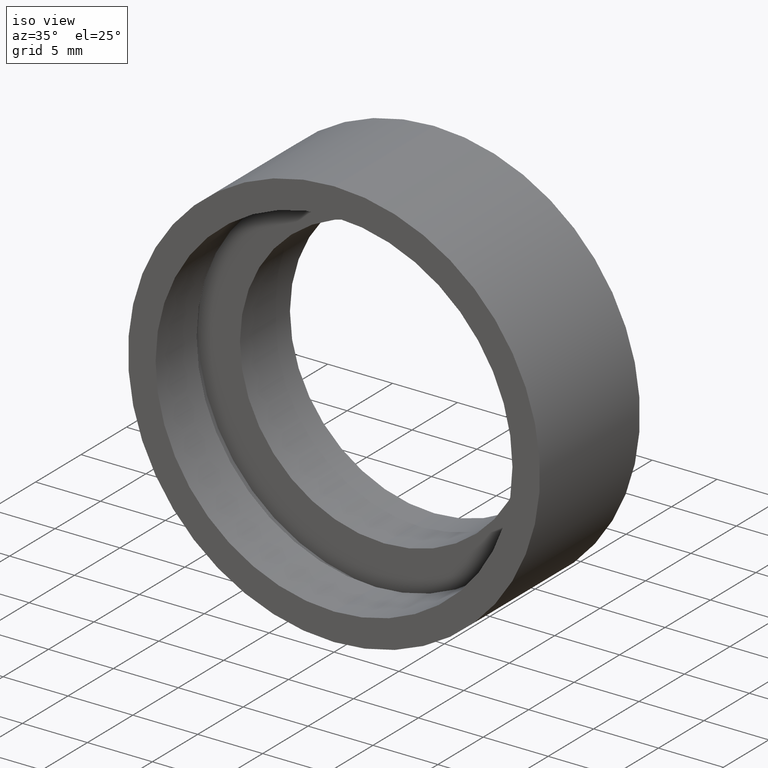
[diagram: clean part render]
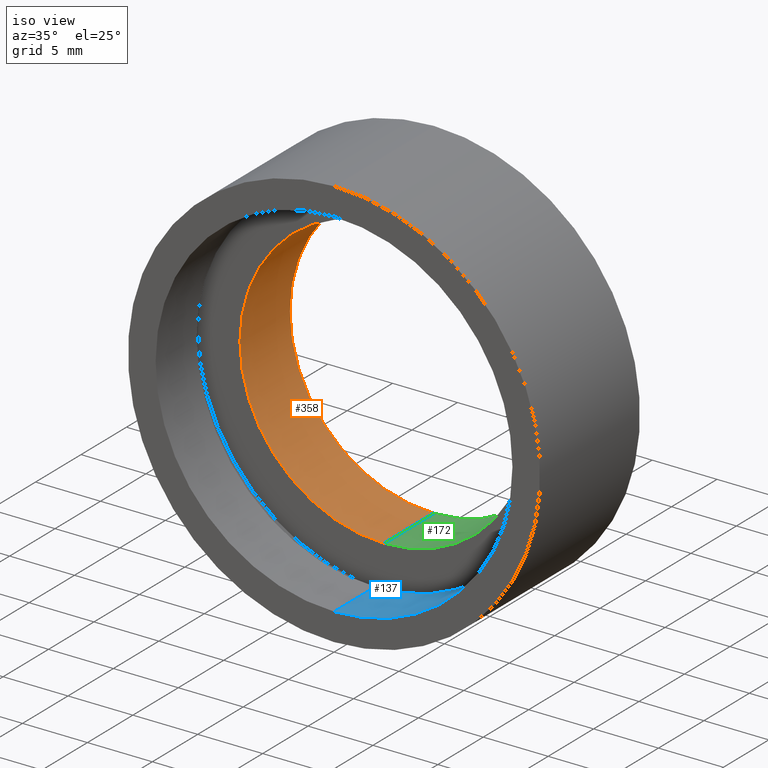
[diagram: same view with three faces highlighted in distinct colors, each labeled with its STEP entity id]
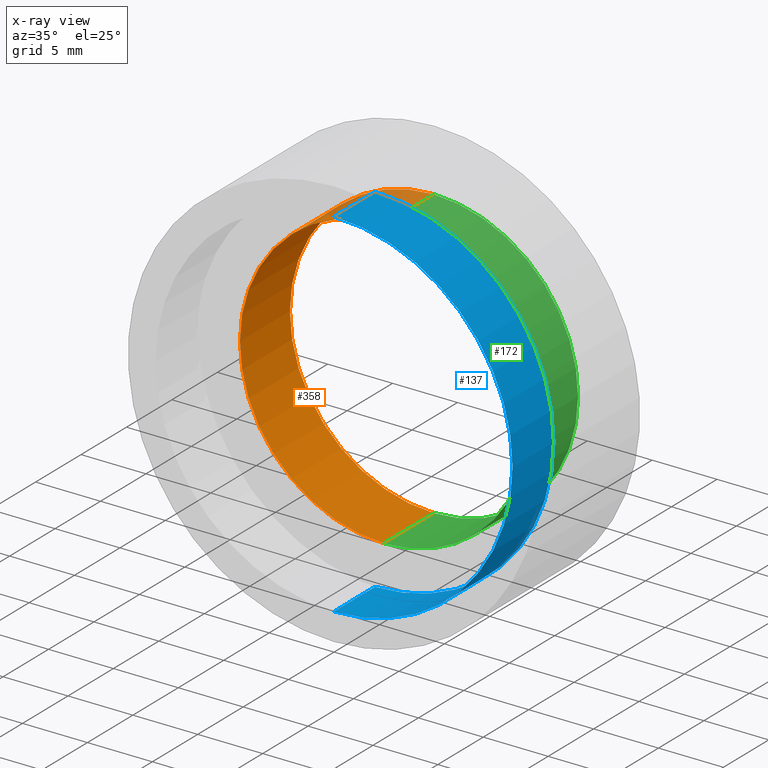
[diagram: x-ray of the same camera — body ghosted, the three highlighted faces saturated]
A machine part, iso view with three faces highlighted in distinct colors.
The next image is the same camera in x-ray (body ghosted, the three faces saturated) — at least one of them is partly hidden behind the body in this view.
Their STEP definitions:

[orange] entity #358 — the highlighted cylindrical surface (partial cylindrical patch) has radius 11.1 mm, axis along (-0, 1, -0).
#5 = AXIS2_PLACEMENT_3D ( 'NONE', #375, #378, #130 ) ;
#19 = CARTESIAN_POINT ( 'NONE',  ( 1.359357947053563100E-015, 10.99999999999999600, -11.10000000000000700 ) ) ;
#27 = ORIENTED_EDGE ( 'NONE', *, *, #152, .T. ) ;
#39 = AXIS2_PLACEMENT_3D ( 'NONE', #407, #185, #318 ) ;
#42 = AXIS2_PLACEMENT_3D ( 'NONE', #198, #155, #282 ) ;
#43 = VERTEX_POINT ( 'NONE', #259 ) ;
#78 = CARTESIAN_POINT ( 'NONE',  ( 1.359357947053563100E-015, 60.02082041425541100, -11.10000000000000700 ) ) ;
#83 = VERTEX_POINT ( 'NONE', #265 ) ;
#130 = DIRECTION ( 'NONE',  ( 0.0000000000000000000, 0.0000000000000000000, 1.000000000000000000 ) ) ;
#152 = EDGE_CURVE ( 'NONE', #228, #317, #387, .T. ) ;
#155 = DIRECTION ( 'NONE',  ( -0.0000000000000000000, 1.000000000000000000, -0.0000000000000000000 ) ) ;
#171 = DIRECTION ( 'NONE',  ( -0.0000000000000000000, 1.000000000000000000, -0.0000000000000000000 ) ) ;
#181 = LINE ( 'NONE', #78, #237 ) ;
#185 = DIRECTION ( 'NONE',  ( -0.0000000000000000000, 1.000000000000000000, -0.0000000000000000000 ) ) ;
#198 = CARTESIAN_POINT ( 'NONE',  ( 0.0000000000000000000, 60.02082041425541100, 0.0000000000000000000 ) ) ;
#205 = FACE_OUTER_BOUND ( 'NONE', #279, .T. ) ;
#207 = EDGE_CURVE ( 'NONE', #83, #228, #181, .T. ) ;
#228 = VERTEX_POINT ( 'NONE', #19 ) ;
#237 = VECTOR ( 'NONE', #171, 1000.000000000000000 ) ;
#250 = DIRECTION ( 'NONE',  ( -0.0000000000000000000, 1.000000000000000000, -0.0000000000000000000 ) ) ;
#259 = CARTESIAN_POINT ( 'NONE',  ( 0.0000000000000000000, 5.499999999999998200, 11.10000000000000700 ) ) ;
#265 = CARTESIAN_POINT ( 'NONE',  ( 1.359357947053563100E-015, 5.499999999999998200, -11.10000000000000700 ) ) ;
#274 = CYLINDRICAL_SURFACE ( 'NONE', #42, 11.10000000000000700 ) ;
#277 = VECTOR ( 'NONE', #250, 1000.000000000000000 ) ;
#279 = EDGE_LOOP ( 'NONE', ( #382, #321, #27, #370 ) ) ;
#282 = DIRECTION ( 'NONE',  ( 0.0000000000000000000, 0.0000000000000000000, 1.000000000000000000 ) ) ;
#295 = EDGE_CURVE ( 'NONE', #83, #43, #303, .T. ) ;
#303 = CIRCLE ( 'NONE', #39, 11.10000000000000700 ) ;
#317 = VERTEX_POINT ( 'NONE', #362 ) ;
#318 = DIRECTION ( 'NONE',  ( 0.0000000000000000000, 0.0000000000000000000, 1.000000000000000000 ) ) ;
#321 = ORIENTED_EDGE ( 'NONE', *, *, #207, .T. ) ;
#332 = EDGE_CURVE ( 'NONE', #43, #317, #433, .T. ) ;
#358 = ADVANCED_FACE ( 'NONE', ( #205 ), #274, .F. ) ;
#362 = CARTESIAN_POINT ( 'NONE',  ( 0.0000000000000000000, 10.99999999999999600, 11.10000000000000700 ) ) ;
#370 = ORIENTED_EDGE ( 'NONE', *, *, #332, .F. ) ;
#372 = CARTESIAN_POINT ( 'NONE',  ( 0.0000000000000000000, 60.02082041425541100, 11.10000000000000700 ) ) ;
#375 = CARTESIAN_POINT ( 'NONE',  ( 0.0000000000000000000, 10.99999999999999600, 0.0000000000000000000 ) ) ;
#378 = DIRECTION ( 'NONE',  ( -0.0000000000000000000, 1.000000000000000000, -0.0000000000000000000 ) ) ;
#382 = ORIENTED_EDGE ( 'NONE', *, *, #295, .F. ) ;
#387 = CIRCLE ( 'NONE', #5, 11.10000000000000700 ) ;
#407 = CARTESIAN_POINT ( 'NONE',  ( 0.0000000000000000000, 5.499999999999998200, 0.0000000000000000000 ) ) ;
#433 = LINE ( 'NONE', #372, #277 ) ;

[blue] entity #137 — the highlighted cylindrical surface (partial cylindrical patch) has radius 13.75 mm, axis along (-0, 1, -0).
#17 = DIRECTION ( 'NONE',  ( 0.0000000000000000000, 0.0000000000000000000, 1.000000000000000000 ) ) ;
#22 = EDGE_LOOP ( 'NONE', ( #291, #377, #263, #216 ) ) ;
#26 = EDGE_CURVE ( 'NONE', #167, #186, #244, .T. ) ;
#28 = CARTESIAN_POINT ( 'NONE',  ( 0.0000000000000000000, 60.02082041425541100, 0.0000000000000000000 ) ) ;
#48 = AXIS2_PLACEMENT_3D ( 'NONE', #28, #59, #17 ) ;
#59 = DIRECTION ( 'NONE',  ( -0.0000000000000000000, 1.000000000000000000, -0.0000000000000000000 ) ) ;
#68 = AXIS2_PLACEMENT_3D ( 'NONE', #257, #296, #85 ) ;
#76 = CYLINDRICAL_SURFACE ( 'NONE', #48, 13.75000000000000700 ) ;
#85 = DIRECTION ( 'NONE',  ( 0.0000000000000000000, 0.0000000000000000000, 1.000000000000000000 ) ) ;
#103 = DIRECTION ( 'NONE',  ( -0.0000000000000000000, 1.000000000000000000, -0.0000000000000000000 ) ) ;
#107 = CARTESIAN_POINT ( 'NONE',  ( 0.0000000000000000000, 0.0000000000000000000, 0.0000000000000000000 ) ) ;
#109 = DIRECTION ( 'NONE',  ( -0.0000000000000000000, 1.000000000000000000, -0.0000000000000000000 ) ) ;
#137 = ADVANCED_FACE ( 'NONE', ( #404 ), #76, .F. ) ;
#150 = CARTESIAN_POINT ( 'NONE',  ( 0.0000000000000000000, 4.499999999999997300, 13.75000000000000700 ) ) ;
#165 = LINE ( 'NONE', #396, #260 ) ;
#167 = VERTEX_POINT ( 'NONE', #256 ) ;
#186 = VERTEX_POINT ( 'NONE', #346 ) ;
#216 = ORIENTED_EDGE ( 'NONE', *, *, #246, .T. ) ;
#221 = VERTEX_POINT ( 'NONE', #150 ) ;
#234 = EDGE_CURVE ( 'NONE', #167, #221, #360, .T. ) ;
#238 = CIRCLE ( 'NONE', #68, 13.75000000000000700 ) ;
#244 = CIRCLE ( 'NONE', #262, 13.75000000000000700 ) ;
#246 = EDGE_CURVE ( 'NONE', #221, #340, #238, .T. ) ;
#256 = CARTESIAN_POINT ( 'NONE',  ( 0.0000000000000000000, 0.0000000000000000000, 13.75000000000000700 ) ) ;
#257 = CARTESIAN_POINT ( 'NONE',  ( 0.0000000000000000000, 4.499999999999997300, 0.0000000000000000000 ) ) ;
#260 = VECTOR ( 'NONE', #356, 1000.000000000000000 ) ;
#262 = AXIS2_PLACEMENT_3D ( 'NONE', #107, #109, #264 ) ;
#263 = ORIENTED_EDGE ( 'NONE', *, *, #234, .T. ) ;
#264 = DIRECTION ( 'NONE',  ( 0.0000000000000000000, 0.0000000000000000000, 1.000000000000000000 ) ) ;
#291 = ORIENTED_EDGE ( 'NONE', *, *, #350, .F. ) ;
#296 = DIRECTION ( 'NONE',  ( -0.0000000000000000000, 1.000000000000000000, -0.0000000000000000000 ) ) ;
#312 = CARTESIAN_POINT ( 'NONE',  ( 0.0000000000000000000, 60.02082041425541100, 13.75000000000000700 ) ) ;
#340 = VERTEX_POINT ( 'NONE', #403 ) ;
#346 = CARTESIAN_POINT ( 'NONE',  ( 1.683889348827611600E-015, 0.0000000000000000000, -13.75000000000000700 ) ) ;
#350 = EDGE_CURVE ( 'NONE', #186, #340, #165, .T. ) ;
#356 = DIRECTION ( 'NONE',  ( -0.0000000000000000000, 1.000000000000000000, -0.0000000000000000000 ) ) ;
#360 = LINE ( 'NONE', #312, #385 ) ;
#377 = ORIENTED_EDGE ( 'NONE', *, *, #26, .F. ) ;
#385 = VECTOR ( 'NONE', #103, 1000.000000000000000 ) ;
#396 = CARTESIAN_POINT ( 'NONE',  ( 1.683889348827611600E-015, 60.02082041425541100, -13.75000000000000700 ) ) ;
#403 = CARTESIAN_POINT ( 'NONE',  ( 1.683889348827611600E-015, 4.499999999999997300, -13.75000000000000700 ) ) ;
#404 = FACE_OUTER_BOUND ( 'NONE', #22, .T. ) ;

[green] entity #172 — the highlighted cylindrical surface (partial cylindrical patch) has radius 11.1 mm, axis along (-0, 1, -0).
#9 = CARTESIAN_POINT ( 'NONE',  ( 0.0000000000000000000, 60.02082041425541100, 0.0000000000000000000 ) ) ;
#10 = DIRECTION ( 'NONE',  ( -0.0000000000000000000, 1.000000000000000000, -0.0000000000000000000 ) ) ;
#13 = CIRCLE ( 'NONE', #164, 11.10000000000000700 ) ;
#19 = CARTESIAN_POINT ( 'NONE',  ( 1.359357947053563100E-015, 10.99999999999999600, -11.10000000000000700 ) ) ;
#29 = CIRCLE ( 'NONE', #135, 11.10000000000000700 ) ;
#43 = VERTEX_POINT ( 'NONE', #259 ) ;
#57 = ORIENTED_EDGE ( 'NONE', *, *, #207, .F. ) ;
#70 = DIRECTION ( 'NONE',  ( 0.0000000000000000000, 0.0000000000000000000, 1.000000000000000000 ) ) ;
#74 = DIRECTION ( 'NONE',  ( 0.0000000000000000000, 0.0000000000000000000, 1.000000000000000000 ) ) ;
#78 = CARTESIAN_POINT ( 'NONE',  ( 1.359357947053563100E-015, 60.02082041425541100, -11.10000000000000700 ) ) ;
#83 = VERTEX_POINT ( 'NONE', #265 ) ;
#112 = FACE_OUTER_BOUND ( 'NONE', #122, .T. ) ;
#122 = EDGE_LOOP ( 'NONE', ( #57, #381, #425, #174 ) ) ;
#135 = AXIS2_PLACEMENT_3D ( 'NONE', #352, #401, #70 ) ;
#164 = AXIS2_PLACEMENT_3D ( 'NONE', #365, #363, #408 ) ;
#171 = DIRECTION ( 'NONE',  ( -0.0000000000000000000, 1.000000000000000000, -0.0000000000000000000 ) ) ;
#172 = ADVANCED_FACE ( 'NONE', ( #112 ), #239, .F. ) ;
#174 = ORIENTED_EDGE ( 'NONE', *, *, #281, .T. ) ;
#175 = EDGE_CURVE ( 'NONE', #43, #83, #29, .T. ) ;
#181 = LINE ( 'NONE', #78, #237 ) ;
#206 = AXIS2_PLACEMENT_3D ( 'NONE', #9, #10, #74 ) ;
#207 = EDGE_CURVE ( 'NONE', #83, #228, #181, .T. ) ;
#228 = VERTEX_POINT ( 'NONE', #19 ) ;
#237 = VECTOR ( 'NONE', #171, 1000.000000000000000 ) ;
#239 = CYLINDRICAL_SURFACE ( 'NONE', #206, 11.10000000000000700 ) ;
#250 = DIRECTION ( 'NONE',  ( -0.0000000000000000000, 1.000000000000000000, -0.0000000000000000000 ) ) ;
#259 = CARTESIAN_POINT ( 'NONE',  ( 0.0000000000000000000, 5.499999999999998200, 11.10000000000000700 ) ) ;
#265 = CARTESIAN_POINT ( 'NONE',  ( 1.359357947053563100E-015, 5.499999999999998200, -11.10000000000000700 ) ) ;
#277 = VECTOR ( 'NONE', #250, 1000.000000000000000 ) ;
#281 = EDGE_CURVE ( 'NONE', #317, #228, #13, .T. ) ;
#317 = VERTEX_POINT ( 'NONE', #362 ) ;
#332 = EDGE_CURVE ( 'NONE', #43, #317, #433, .T. ) ;
#352 = CARTESIAN_POINT ( 'NONE',  ( 0.0000000000000000000, 5.499999999999998200, 0.0000000000000000000 ) ) ;
#362 = CARTESIAN_POINT ( 'NONE',  ( 0.0000000000000000000, 10.99999999999999600, 11.10000000000000700 ) ) ;
#363 = DIRECTION ( 'NONE',  ( -0.0000000000000000000, 1.000000000000000000, -0.0000000000000000000 ) ) ;
#365 = CARTESIAN_POINT ( 'NONE',  ( 0.0000000000000000000, 10.99999999999999600, 0.0000000000000000000 ) ) ;
#372 = CARTESIAN_POINT ( 'NONE',  ( 0.0000000000000000000, 60.02082041425541100, 11.10000000000000700 ) ) ;
#381 = ORIENTED_EDGE ( 'NONE', *, *, #175, .F. ) ;
#401 = DIRECTION ( 'NONE',  ( -0.0000000000000000000, 1.000000000000000000, -0.0000000000000000000 ) ) ;
#408 = DIRECTION ( 'NONE',  ( 0.0000000000000000000, 0.0000000000000000000, 1.000000000000000000 ) ) ;
#425 = ORIENTED_EDGE ( 'NONE', *, *, #332, .T. ) ;
#433 = LINE ( 'NONE', #372, #277 ) ;